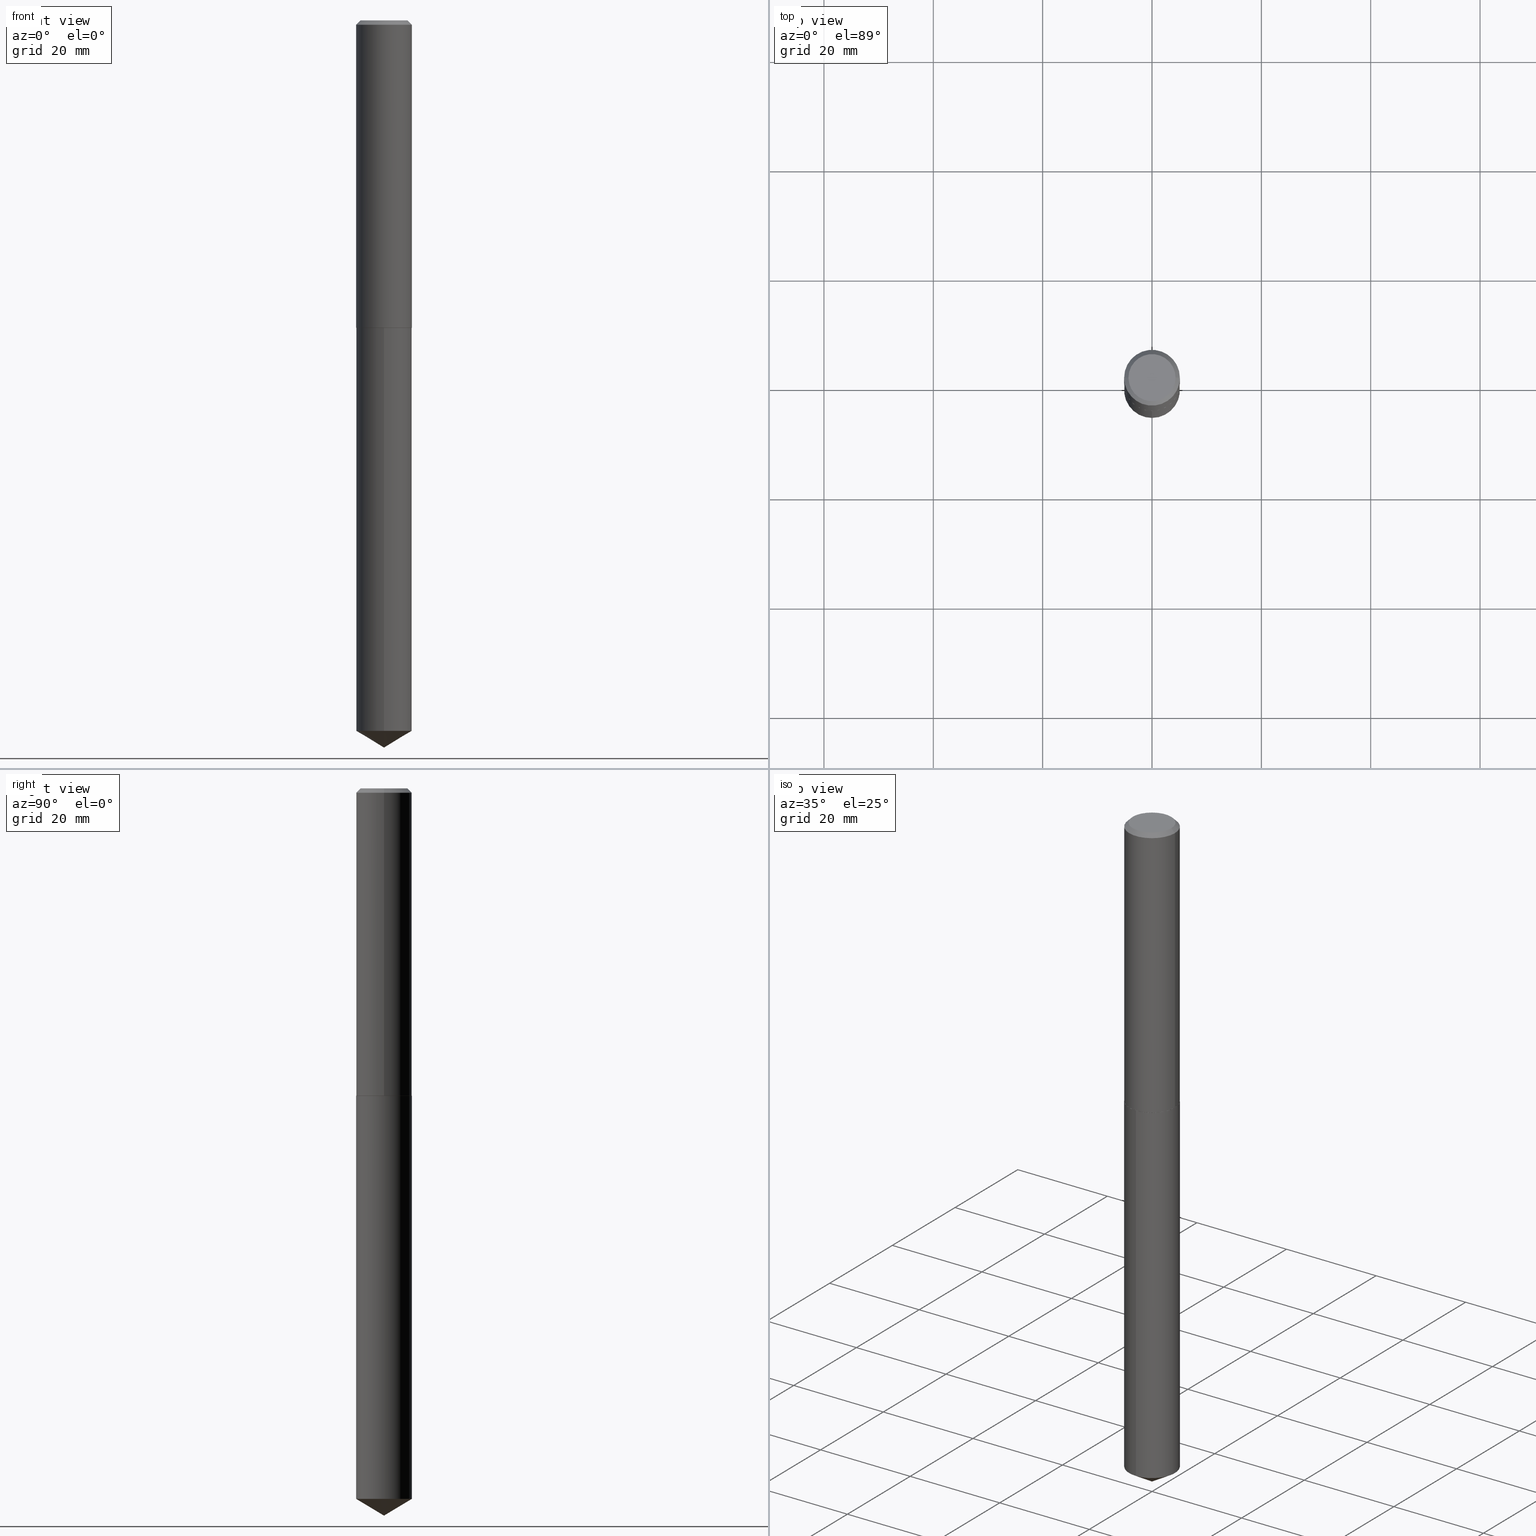
[diagram: canonical four-view strip — front | top / right | iso, engineering-drawing reading convention]
A machine part, canonical four-view strip (front | top / right | iso — engineering-drawing reading convention). The complete STEP part file that produces these views, byte-faithful:
ISO-10303-21;
HEADER;
FILE_DESCRIPTION (( 'STEP AP203' ),
    '1' );
FILE_NAME ('61124.STEP',
    '2024-04-23T04:31:15',
    ( '' ),
    ( '' ),
    'SwSTEP 2.0',
    'SolidWorks 2023',
    '' );
FILE_SCHEMA (( 'CONFIG_CONTROL_DESIGN' ));
ENDSEC;

DATA;
#1 = APPLICATION_CONTEXT ( 'configuration controlled 3d designs of mechanical parts and assemblies' ) ;
#2 = EDGE_CURVE ( 'NONE', #223, #241, #267, .T. ) ;
#3 = AXIS2_PLACEMENT_3D ( 'NONE', #147, #80, #146 ) ;
#4 = AXIS2_PLACEMENT_3D ( 'NONE', #56, #60, #337 ) ;
#5 = CARTESIAN_POINT ( 'NONE',  ( 0.2008000000000002838, -9.125684775334329843E-15, -2.212100000000000843 ) ) ;
#6 = DIRECTION ( 'NONE',  ( -2.445428185463141747E-29, 3.491539510029030103E-15, 1.000000000000000000 ) ) ;
#7 = CONICAL_SURFACE ( 'NONE', #264, 0.2008000000000002838, 0.7853981633969702170 ) ;
#8 = DIRECTION ( 'NONE',  ( 2.445428185463141466E-29, -3.491539510029030103E-15, -1.000000000000000000 ) ) ;
#9 = LOCAL_TIME ( 0, 31, 15.00000000000000000, #103 ) ;
#10 = COORDINATED_UNIVERSAL_TIME_OFFSET ( 5, 0, .BEHIND. ) ;
#11 = CARTESIAN_POINT ( 'NONE',  ( 5.410844280565235074E-29, -7.725251610324346826E-15, -2.212600000000001010 ) ) ;
#12 = ORIENTED_EDGE ( 'NONE', *, *, #339, .F. ) ;
#13 = DATE_TIME_ROLE ( 'classification_date' ) ;
#14 = DIRECTION ( 'NONE',  ( -6.982962677686265922E-15, -1.000000000000000000, 3.468864327941598553E-15 ) ) ;
#15 = ADVANCED_FACE ( 'NONE', ( #248 ), #7, .T. ) ;
#16 = EDGE_LOOP ( 'NONE', ( #12, #303, #57, #387 ) ) ;
#17 = AXIS2_PLACEMENT_3D ( 'NONE', #158, #325, #24 ) ;
#18 = CARTESIAN_POINT ( 'NONE',  ( -0.2008000000000002838, -6.296736056248642724E-15, -2.212100000000000843 ) ) ;
#19 = ORIENTED_EDGE ( 'NONE', *, *, #189, .F. ) ;
#20 = DIRECTION ( 'NONE',  ( 1.000000000000000000, -6.982962677686264344E-15, 0.000000000000000000 ) ) ;
#21 = ADVANCED_BREP_SHAPE_REPRESENTATION ( '61124', ( #138, #256, #316 ), #268 ) ;
#22 = ORIENTED_EDGE ( 'NONE', *, *, #117, .T. ) ;
#23 = EDGE_CURVE ( 'NONE', #296, #188, #237, .T. ) ;
#24 = DIRECTION ( 'NONE',  ( -6.982962677686266711E-15, -1.000000000000000000, 5.441928274231599754E-15 ) ) ;
#25 = DIRECTION ( 'NONE',  ( 1.000000000000000000, -6.982962677686266711E-15, 0.000000000000000000 ) ) ;
#26 = EDGE_LOOP ( 'NONE', ( #240, #206 ) ) ;
#27 = AXIS2_PLACEMENT_3D ( 'NONE', #335, #250, #142 ) ;
#28 = LENGTH_MEASURE_WITH_UNIT ( LENGTH_MEASURE( 0.02539999999999999897 ), #123 );
#29 = CARTESIAN_POINT ( 'NONE',  ( 1.426769813406406449E-15, 0.2007999999999922902, -2.212600000000001899 ) ) ;
#30 = PERSON_AND_ORGANIZATION ( #285, #67 ) ;
#31 = CARTESIAN_POINT ( 'NONE',  ( -1.402178905679348314E-15, -0.2008000000000077223, -2.212600000000000122 ) ) ;
#32 = DIRECTION ( 'NONE',  ( -2.445428185463141747E-29, 3.491539510029030103E-15, 1.000000000000000000 ) ) ;
#33 = CC_DESIGN_PERSON_AND_ORGANIZATION_ASSIGNMENT ( #274, #209, ( #386 ) ) ;
#34 = ORIENTED_EDGE ( 'NONE', *, *, #228, .F. ) ;
#35 = DIRECTION ( 'NONE',  ( -6.982962677686266711E-15, -1.000000000000000000, 4.081446205673699815E-15 ) ) ;
#36 = CALENDAR_DATE ( 2024, 23, 4 ) ;
#37 = CARTESIAN_POINT ( 'NONE',  ( 0.2008000000000001450, -1.402178905679403337E-15, 9.791362965798246718E-30 ) ) ;
#38 = CIRCLE ( 'NONE', #378, 0.2008000000000000063 ) ;
#39 = SECURITY_CLASSIFICATION ( '', '', #139 ) ;
#40 = DATE_AND_TIME ( #99, #9 ) ;
#41 = DIRECTION ( 'NONE',  ( -2.445468806185136597E-29, 3.491481338843145583E-15, 1.000000000000000000 ) ) ;
#42 = EDGE_CURVE ( 'NONE', #150, #188, #212, .T. ) ;
#43 = COORDINATED_UNIVERSAL_TIME_OFFSET ( 5, 0, .BEHIND. ) ;
#44 = DIRECTION ( 'NONE',  ( -2.445468806185136597E-29, 3.491481338843145583E-15, 1.000000000000000000 ) ) ;
#45 = ORIENTED_EDGE ( 'NONE', *, *, #226, .F. ) ;
#46 = VECTOR ( 'NONE', #199, 39.37007874015748854 ) ;
#47 = CARTESIAN_POINT ( 'NONE',  ( -0.2008000000000000063, 1.293070113840553250E-15, -0.03125000000000022898 ) ) ;
#48 = PRODUCT_DEFINITION_SHAPE ( 'NONE', 'NONE',  #314 ) ;
#49 = EDGE_CURVE ( 'NONE', #296, #284, #315, .T. ) ;
#50 = DIRECTION ( 'NONE',  ( 1.000000000000000000, -6.982962677686267499E-15, 0.000000000000000000 ) ) ;
#51 = ORIENTED_EDGE ( 'NONE', *, *, #300, .F. ) ;
#52 = DIRECTION ( 'NONE',  ( 6.090539988449778436E-15, 0.8571673007021137769, 0.5150380749100517130 ) ) ;
#53 = DIRECTION ( 'NONE',  ( -6.982962677686266711E-15, -1.000000000000000000, 4.081446205673699815E-15 ) ) ;
#54 = ORIENTED_EDGE ( 'NONE', *, *, #300, .T. ) ;
#55 = APPROVAL_PERSON_ORGANIZATION ( #187, #216, #160 ) ;
#56 = CARTESIAN_POINT ( 'NONE',  ( -8.347185927295272708E-28, 1.191799149613656818E-13, 34.13387874015747769 ) ) ;
#57 = ORIENTED_EDGE ( 'NONE', *, *, #308, .T. ) ;
#58 = APPROVAL ( #310, 'UNSPECIFIED' ) ;
#59 = CARTESIAN_POINT ( 'NONE',  ( -0.2003000000000008662, -6.299385283422751559E-15, -2.212600000000001010 ) ) ;
#60 = DIRECTION ( 'NONE',  ( -2.445428185463141747E-29, 3.491539510029030103E-15, 1.000000000000000000 ) ) ;
#61 = VERTEX_POINT ( 'NONE', #114 ) ;
#62 = ORIENTED_EDGE ( 'NONE', *, *, #235, .F. ) ;
#63 = AXIS2_PLACEMENT_3D ( 'NONE', #89, #211, #181 ) ;
#64 = DESIGN_CONTEXT ( 'detailed design', #1, 'design' ) ;
#65 = APPLICATION_PROTOCOL_DEFINITION ( 'international standard', 'config_control_design', 1994, #1 ) ;
#66 = CIRCLE ( 'NONE', #159, 0.2003000000000008662 ) ;
#67 = ORGANIZATION ( 'UNSPECIFIED', 'UNSPECIFIED', '' ) ;
#68 = DIRECTION ( 'NONE',  ( 1.000000000000000000, 0.000000000000000000, 0.000000000000000000 ) ) ;
#69 = ADVANCED_FACE ( 'NONE', ( #254 ), #319, .T. ) ;
#70 = CARTESIAN_POINT ( 'NONE',  ( 1.280475106472210421E-28, -1.828239918241400823E-14, -5.236200000000000188 ) ) ;
#71 = PERSON_AND_ORGANIZATION_ROLE ( 'creator' ) ;
#72 = CARTESIAN_POINT ( 'NONE',  ( 5.409621546162143394E-29, -7.723505869654926111E-15, -2.212100000000000843 ) ) ;
#73 = AXIS2_PLACEMENT_3D ( 'NONE', #371, #111, #277 ) ;
#74 = VECTOR ( 'NONE', #344, 39.37007874015748143 ) ;
#75 = EDGE_CURVE ( 'NONE', #135, #132, #309, .T. ) ;
#76 = CARTESIAN_POINT ( 'NONE',  ( 5.409621546162143394E-29, -7.723505869654926111E-15, -2.212100000000000843 ) ) ;
#77 = ORIENTED_EDGE ( 'NONE', *, *, #180, .T. ) ;
#78 = ORIENTED_EDGE ( 'NONE', *, *, #2, .F. ) ;
#79 = CONICAL_SURFACE ( 'NONE', #253, 65.52281426576834633, 1.029744258676653867 ) ;
#80 = DIRECTION ( 'NONE',  ( -2.445468806185136597E-29, 3.491481338843145583E-15, 1.000000000000000000 ) ) ;
#81 = ORIENTED_EDGE ( 'NONE', *, *, #94, .T. ) ;
#82 = LINE ( 'NONE', #196, #229 ) ;
#83 = PLANE ( 'NONE',  #27 ) ;
#84 = LINE ( 'NONE', #126, #46 ) ;
#85 = FACE_OUTER_BOUND ( 'NONE', #16, .T. ) ;
#86 = ADVANCED_FACE ( 'NONE', ( #225 ), #153, .T. ) ;
#87 = LOCAL_TIME ( 0, 31, 15.00000000000000000, #252 ) ;
#88 = SHAPE_DEFINITION_REPRESENTATION ( #48, #21 ) ;
#89 = CARTESIAN_POINT ( 'NONE',  ( 5.409621546162143394E-29, -7.723505869654926111E-15, -2.212100000000000843 ) ) ;
#90 = ORIENTED_EDGE ( 'NONE', *, *, #75, .T. ) ;
#91 = CARTESIAN_POINT ( 'NONE',  ( 0.2008000000000000063, -1.511287697518251451E-15, -0.03125000000000022898 ) ) ;
#92 = AXIS2_PLACEMENT_3D ( 'NONE', #129, #8, #313 ) ;
#93 = ORIENTED_EDGE ( 'NONE', *, *, #145, .F. ) ;
#94 = EDGE_CURVE ( 'NONE', #135, #230, #66, .T. ) ;
#95 = PERSON_AND_ORGANIZATION ( #285, #67 ) ;
#96 = FACE_OUTER_BOUND ( 'NONE', #279, .T. ) ;
#97 = FACE_OUTER_BOUND ( 'NONE', #174, .T. ) ;
#98 = DIRECTION ( 'NONE',  ( -0.7071067811865450192, 2.468850131082230634E-15, -0.7071067811865500152 ) ) ;
#99 = CALENDAR_DATE ( 2024, 23, 4 ) ;
#100 = DIRECTION ( 'NONE',  ( -2.445468806185136877E-29, 3.491481338843145188E-15, 1.000000000000000000 ) ) ;
#101 = ADVANCED_FACE ( 'NONE', ( #369 ), #331, .T. ) ;
#102 = CARTESIAN_POINT ( 'NONE',  ( -0.2008000000000001450, 1.426769813406282204E-15, -9.877221661231856994E-30 ) ) ;
#103 = COORDINATED_UNIVERSAL_TIME_OFFSET ( 5, 0, .BEHIND. ) ;
#104 = VECTOR ( 'NONE', #292, 39.37007874015748143 ) ;
#105 = CIRCLE ( 'NONE', #215, 0.1695500000000000063 ) ;
#106 = DIRECTION ( 'NONE',  ( 1.000000000000000000, -6.982962677686267499E-15, 4.876167740117660532E-29 ) ) ;
#107 = DIRECTION ( 'NONE',  ( 1.000000000000000000, -6.982962677686267499E-15, 0.000000000000000000 ) ) ;
#108 = DIRECTION ( 'NONE',  ( 2.445468806185136597E-29, -3.491481338843145583E-15, -1.000000000000000000 ) ) ;
#109 = ORIENTED_EDGE ( 'NONE', *, *, #235, .T. ) ;
#110 = CC_DESIGN_PERSON_AND_ORGANIZATION_ASSIGNMENT ( #247, #71, ( #314 ) ) ;
#111 = DIRECTION ( 'NONE',  ( 2.445468806185136597E-29, -3.491481338843145583E-15, -1.000000000000000000 ) ) ;
#112 = ORIENTED_EDGE ( 'NONE', *, *, #228, .T. ) ;
#113 = UNCERTAINTY_MEASURE_WITH_UNIT (LENGTH_MEASURE( 1.000000000000000082E-05 ), #201, 'distance_accuracy_value', 'NONE');
#114 = CARTESIAN_POINT ( 'NONE',  ( 1.426769813406406252E-15, 0.2007999999999821872, -5.115547187699267084 ) ) ;
#115 = CALENDAR_DATE ( 2024, 23, 4 ) ;
#116 = CARTESIAN_POINT ( 'NONE',  ( 7.642090019328607041E-31, -1.091087918388490883E-16, -0.03125000000000022898 ) ) ;
#117 = EDGE_CURVE ( 'NONE', #132, #150, #127, .T. ) ;
#118 = CARTESIAN_POINT ( 'NONE',  ( 0.2008000000000002838, -9.125684775334329843E-15, -2.212100000000000843 ) ) ;
#119 = ORIENTED_EDGE ( 'NONE', *, *, #117, .F. ) ;
#120 = DIRECTION ( 'NONE',  ( -2.445468806185136597E-29, 3.491481338843145583E-15, 1.000000000000000000 ) ) ;
#121 = CARTESIAN_POINT ( 'NONE',  ( 1.426769813406335057E-15, 0.2007999999999922902, -2.212600000000001899 ) ) ;
#122 = AXIS2_PLACEMENT_3D ( 'NONE', #330, #299, #234 ) ;
#123 =( LENGTH_UNIT ( ) NAMED_UNIT ( * ) SI_UNIT ( $, .METRE. ) );
#124 = CYLINDRICAL_SURFACE ( 'NONE', #261, 0.2008000000000001450 ) ;
#125 = PERSON_AND_ORGANIZATION ( #285, #67 ) ;
#126 = CARTESIAN_POINT ( 'NONE',  ( -0.2008000000000002838, -6.296736056248642724E-15, -2.212100000000000843 ) ) ;
#127 = CIRCLE ( 'NONE', #336, 0.2008000000000002838 ) ;
#128 = CIRCLE ( 'NONE', #246, 0.2008000000000000063 ) ;
#129 = CARTESIAN_POINT ( 'NONE',  ( 5.410844280565235074E-29, -7.725251610324346826E-15, -2.212600000000001010 ) ) ;
#130 = ORIENTED_EDGE ( 'NONE', *, *, #94, .F. ) ;
#131 = EDGE_CURVE ( 'NONE', #255, #375, #179, .T. ) ;
#132 = VERTEX_POINT ( 'NONE', #118 ) ;
#133 = AXIS2_PLACEMENT_3D ( 'NONE', #191, #108, #195 ) ;
#134 = DIRECTION ( 'NONE',  ( -6.982962677686266711E-15, -1.000000000000000000, 4.081446205673699815E-15 ) ) ;
#135 = VERTEX_POINT ( 'NONE', #345 ) ;
#136 = CC_DESIGN_DATE_AND_TIME_ASSIGNMENT ( #192, #13, ( #39 ) ) ;
#137 = VECTOR ( 'NONE', #100, 39.37007874015748143 ) ;
#138 = MANIFOLD_SOLID_BREP ( 'Body-Move/Copy2[1]', #346 ) ;
#139 = SECURITY_CLASSIFICATION_LEVEL ( 'unclassified' ) ;
#140 = ADVANCED_FACE ( 'NONE', ( #85 ), #266, .T. ) ;
#141 = EDGE_LOOP ( 'NONE', ( #184, #109, #365, #354 ) ) ;
#142 = DIRECTION ( 'NONE',  ( -1.000000000000000000, 6.982962677686265922E-15, -4.876176775795935793E-29 ) ) ;
#143 = CIRCLE ( 'NONE', #221, 0.2008000000000002838 ) ;
#144 = ORIENTED_EDGE ( 'NONE', *, *, #308, .F. ) ;
#145 = EDGE_CURVE ( 'NONE', #241, #61, #390, .T. ) ;
#146 = DIRECTION ( 'NONE',  ( 1.000000000000000000, -6.982962677686266711E-15, 4.876176775795936353E-29 ) ) ;
#147 = CARTESIAN_POINT ( 'NONE',  ( 0.000000000000000000, 0.000000000000000000, 0.000000000000000000 ) ) ;
#148 = CALENDAR_DATE ( 2024, 23, 4 ) ;
#149 = ORIENTED_EDGE ( 'NONE', *, *, #194, .F. ) ;
#150 = VERTEX_POINT ( 'NONE', #18 ) ;
#151 = CARTESIAN_POINT ( 'NONE',  ( 0.1695500000000000063, -1.324947112656768051E-15, 7.225416115057117529E-19 ) ) ;
#152 =( NAMED_UNIT ( * ) PLANE_ANGLE_UNIT ( ) SI_UNIT ( $, .RADIAN. ) );
#153 = CONICAL_SURFACE ( 'NONE', #73, 0.2008000000000000063, 0.7853981633974447263 ) ;
#154 = CIRCLE ( 'NONE', #265, 0.2008000000000000063 ) ;
#155 = PERSON_AND_ORGANIZATION_ROLE ( 'classification_officer' ) ;
#156 = CC_DESIGN_PERSON_AND_ORGANIZATION_ASSIGNMENT ( #30, #155, ( #39 ) ) ;
#157 = ORIENTED_EDGE ( 'NONE', *, *, #205, .F. ) ;
#158 = CARTESIAN_POINT ( 'NONE',  ( 1.250979315427598135E-28, -1.786100641170398941E-14, -5.115547187699266196 ) ) ;
#159 = AXIS2_PLACEMENT_3D ( 'NONE', #348, #283, #340 ) ;
#160 = APPROVAL_ROLE ( '' ) ;
#161 = CIRCLE ( 'NONE', #364, 0.2003000000000008662 ) ;
#162 = VERTEX_POINT ( 'NONE', #91 ) ;
#163 = DATE_TIME_ROLE ( 'creation_date' ) ;
#164 = EDGE_LOOP ( 'NONE', ( #130, #34 ) ) ;
#165 = PERSON_AND_ORGANIZATION_ROLE ( 'creator' ) ;
#166 = AXIS2_PLACEMENT_3D ( 'NONE', #170, #6, #53 ) ;
#167 = ADVANCED_FACE ( 'NONE', ( #97 ), #124, .T. ) ;
#168 = PERSON_AND_ORGANIZATION ( #285, #67 ) ;
#169 = EDGE_LOOP ( 'NONE', ( #22, #233, #157, #19 ) ) ;
#170 = CARTESIAN_POINT ( 'NONE',  ( 5.410844280565235074E-29, -7.725251610324346826E-15, -2.212600000000001010 ) ) ;
#171 = ADVANCED_FACE ( 'NONE', ( #96 ), #347, .T. ) ;
#172 = DIRECTION ( 'NONE',  ( -2.438088387897960049E-29, 3.491481338843145188E-15, 1.000000000000000000 ) ) ;
#173 = LOCAL_TIME ( 0, 31, 15.00000000000000000, #43 ) ;
#174 = EDGE_LOOP ( 'NONE', ( #359, #227, #281, #341 ) ) ;
#175 = LINE ( 'NONE', #379, #104 ) ;
#176 = PLANE ( 'NONE',  #286 ) ;
#177 = DIRECTION ( 'NONE',  ( 0.7071067811862092878, -2.468850131078715470E-15, 0.7071067811868855246 ) ) ;
#178 = EDGE_CURVE ( 'NONE', #284, #296, #105, .T. ) ;
#179 = CIRCLE ( 'NONE', #166, 0.2008000000000000063 ) ;
#180 = EDGE_CURVE ( 'NONE', #375, #255, #154, .T. ) ;
#181 = DIRECTION ( 'NONE',  ( 1.000000000000000000, -6.982962677686267499E-15, 0.000000000000000000 ) ) ;
#182 = CARTESIAN_POINT ( 'NONE',  ( 0.000000000000000000, 0.000000000000000000, 0.000000000000000000 ) ) ;
#183 = APPROVAL_STATUS ( 'not_yet_approved' ) ;
#184 = ORIENTED_EDGE ( 'NONE', *, *, #178, .F. ) ;
#185 = DATE_AND_TIME ( #36, #173 ) ;
#186 = CARTESIAN_POINT ( 'NONE',  ( -1.766952972086505154E-47, 2.522740553079218199E-33, 7.225416114969394308E-19 ) ) ;
#187 = PERSON_AND_ORGANIZATION ( #285, #67 ) ;
#188 = VERTEX_POINT ( 'NONE', #294 ) ;
#189 = EDGE_CURVE ( 'NONE', #132, #162, #287, .T. ) ;
#190 = CALENDAR_DATE ( 2024, 23, 4 ) ;
#191 = CARTESIAN_POINT ( 'NONE',  ( 7.642090019328607041E-31, -1.091087918388490883E-16, -0.03125000000000022898 ) ) ;
#192 = DATE_AND_TIME ( #148, #262 ) ;
#193 = FACE_OUTER_BOUND ( 'NONE', #164, .T. ) ;
#194 = EDGE_CURVE ( 'NONE', #150, #132, #143, .T. ) ;
#195 = DIRECTION ( 'NONE',  ( -1.000000000000000000, 6.982962677686266711E-15, 0.000000000000000000 ) ) ;
#196 = CARTESIAN_POINT ( 'NONE',  ( 1.280493239577865637E-28, -1.828214176328223071E-14, -5.236200000000000188 ) ) ;
#197 = APPROVAL_DATE_TIME ( #342, #58 ) ;
#198 = CARTESIAN_POINT ( 'NONE',  ( 5.410844280565235074E-29, -7.725251610324346826E-15, -2.212600000000001010 ) ) ;
#199 = DIRECTION ( 'NONE',  ( -0.7071067811862092878, 7.493145998869131426E-15, 0.7071067811868855246 ) ) ;
#200 = FACE_OUTER_BOUND ( 'NONE', #382, .T. ) ;
#201 =( CONVERSION_BASED_UNIT ( 'INCH', #28 ) LENGTH_UNIT ( ) NAMED_UNIT ( #304 ) );
#202 = DIRECTION ( 'NONE',  ( -2.445468806185136597E-29, 3.491481338843145583E-15, 1.000000000000000000 ) ) ;
#203 = VECTOR ( 'NONE', #219, 39.37007874015748143 ) ;
#204 = DIRECTION ( 'NONE',  ( -2.445428185463141747E-29, 3.491539510029030103E-15, 1.000000000000000000 ) ) ;
#205 = EDGE_CURVE ( 'NONE', #162, #188, #38, .T. ) ;
#206 = ORIENTED_EDGE ( 'NONE', *, *, #178, .T. ) ;
#207 = VECTOR ( 'NONE', #332, 39.37007874015748143 ) ;
#208 = AXIS2_PLACEMENT_3D ( 'NONE', #269, #204, #35 ) ;
#209 = PERSON_AND_ORGANIZATION_ROLE ( 'design_supplier' ) ;
#210 = DIRECTION ( 'NONE',  ( 0.000000000000000000, 0.000000000000000000, 1.000000000000000000 ) ) ;
#211 = DIRECTION ( 'NONE',  ( -2.445468806185136597E-29, 3.491481338843145583E-15, 1.000000000000000000 ) ) ;
#212 = LINE ( 'NONE', #102, #207 ) ;
#213 = DIRECTION ( 'NONE',  ( -6.982962677686266711E-15, -1.000000000000000000, 4.081446205673699815E-15 ) ) ;
#214 = EDGE_LOOP ( 'NONE', ( #78, #54, #93 ) ) ;
#215 = AXIS2_PLACEMENT_3D ( 'NONE', #358, #202, #361 ) ;
#216 = APPROVAL ( #367, 'UNSPECIFIED' ) ;
#217 = ORIENTED_EDGE ( 'NONE', *, *, #23, .T. ) ;
#218 = COORDINATED_UNIVERSAL_TIME_OFFSET ( 5, 0, .BEHIND. ) ;
#219 = DIRECTION ( 'NONE',  ( -2.445428185463141747E-29, 3.491539510029030103E-15, 1.000000000000000000 ) ) ;
#220 = FACE_OUTER_BOUND ( 'NONE', #214, .T. ) ;
#221 = AXIS2_PLACEMENT_3D ( 'NONE', #72, #302, #289 ) ;
#222 = ORIENTED_EDGE ( 'NONE', *, *, #131, .T. ) ;
#223 = VERTEX_POINT ( 'NONE', #260 ) ;
#224 = AXIS2_PLACEMENT_3D ( 'NONE', #186, #41, #106 ) ;
#225 = FACE_OUTER_BOUND ( 'NONE', #288, .T. ) ;
#226 = EDGE_CURVE ( 'NONE', #230, #150, #84, .T. ) ;
#227 = ORIENTED_EDGE ( 'NONE', *, *, #194, .T. ) ;
#228 = EDGE_CURVE ( 'NONE', #230, #135, #161, .T. ) ;
#229 = VECTOR ( 'NONE', #52, 39.37007874015748143 ) ;
#230 = VERTEX_POINT ( 'NONE', #59 ) ;
#231 = CC_DESIGN_APPROVAL ( #58, ( #39 ) ) ;
#232 = CARTESIAN_POINT ( 'NONE',  ( -1.402178905679277119E-15, -0.2008000000000178809, -5.115547187699265308 ) ) ;
#233 = ORIENTED_EDGE ( 'NONE', *, *, #42, .T. ) ;
#234 = DIRECTION ( 'NONE',  ( -6.982962677686266711E-15, -1.000000000000000000, 5.441928274231599754E-15 ) ) ;
#235 = EDGE_CURVE ( 'NONE', #284, #162, #175, .T. ) ;
#236 = FACE_OUTER_BOUND ( 'NONE', #324, .T. ) ;
#237 = LINE ( 'NONE', #47, #389 ) ;
#238 = EDGE_LOOP ( 'NONE', ( #45, #112, #90, #149 ) ) ;
#239 = DIRECTION ( 'NONE',  ( -2.445428185463141747E-29, 3.491539510029030103E-15, 1.000000000000000000 ) ) ;
#240 = ORIENTED_EDGE ( 'NONE', *, *, #49, .T. ) ;
#241 = VERTEX_POINT ( 'NONE', #232 ) ;
#242 = PERSON_AND_ORGANIZATION ( #285, #67 ) ;
#243 = APPROVAL ( #183, 'UNSPECIFIED' ) ;
#244 = VECTOR ( 'NONE', #177, 39.37007874015748854 ) ;
#245 = ORIENTED_EDGE ( 'NONE', *, *, #2, .T. ) ;
#246 = AXIS2_PLACEMENT_3D ( 'NONE', #374, #291, #25 ) ;
#247 = PERSON_AND_ORGANIZATION ( #285, #67 ) ;
#248 = FACE_OUTER_BOUND ( 'NONE', #238, .T. ) ;
#249 = ORIENTED_EDGE ( 'NONE', *, *, #339, .T. ) ;
#250 = DIRECTION ( 'NONE',  ( 2.438088387897960049E-29, -3.491481338843145188E-15, -1.000000000000000000 ) ) ;
#251 = PRODUCT ( '61124', '61124', '', ( #380 ) ) ;
#252 = COORDINATED_UNIVERSAL_TIME_OFFSET ( 5, 0, .BEHIND. ) ;
#253 = AXIS2_PLACEMENT_3D ( 'NONE', #317, #370, #14 ) ;
#254 = FACE_OUTER_BOUND ( 'NONE', #169, .T. ) ;
#255 = VERTEX_POINT ( 'NONE', #29 ) ;
#256 = MANIFOLD_SOLID_BREP ( 'Body-Move/Copy2[2]', #322 ) ;
#257 = CARTESIAN_POINT ( 'NONE',  ( -1.402178905679348314E-15, -0.2008000000000077223, -2.212600000000000122 ) ) ;
#258 = CARTESIAN_POINT ( 'NONE',  ( 5.409621546162143394E-29, -7.723505869654926111E-15, -2.212100000000000843 ) ) ;
#259 = ADVANCED_FACE ( 'NONE', ( #236 ), #297, .T. ) ;
#260 = CARTESIAN_POINT ( 'NONE',  ( 1.280475106472210421E-28, -1.828239918241400823E-14, -5.236200000000000188 ) ) ;
#261 = AXIS2_PLACEMENT_3D ( 'NONE', #182, #356, #349 ) ;
#262 = LOCAL_TIME ( 0, 31, 15.00000000000000000, #10 ) ;
#263 = FACE_OUTER_BOUND ( 'NONE', #278, .T. ) ;
#264 = AXIS2_PLACEMENT_3D ( 'NONE', #76, #44, #107 ) ;
#265 = AXIS2_PLACEMENT_3D ( 'NONE', #295, #32, #134 ) ;
#266 = CYLINDRICAL_SURFACE ( 'NONE', #307, 0.2008000000000000063 ) ;
#267 = LINE ( 'NONE', #70, #377 ) ;
#268 =( GEOMETRIC_REPRESENTATION_CONTEXT ( 3 ) GLOBAL_UNCERTAINTY_ASSIGNED_CONTEXT ( ( #113 ) ) GLOBAL_UNIT_ASSIGNED_CONTEXT ( ( #201, #152, #327 ) ) REPRESENTATION_CONTEXT ( 'NONE', 'WORKASPACE' ) );
#269 = CARTESIAN_POINT ( 'NONE',  ( 5.410844280565235074E-29, -7.725251610324346826E-15, -2.212600000000001010 ) ) ;
#270 = DATE_AND_TIME ( #190, #323 ) ;
#271 = ORIENTED_EDGE ( 'NONE', *, *, #49, .F. ) ;
#272 = EDGE_CURVE ( 'NONE', #61, #241, #357, .T. ) ;
#273 = APPROVAL_PERSON_ORGANIZATION ( #242, #243, #363 ) ;
#274 = PERSON_AND_ORGANIZATION ( #285, #67 ) ;
#275 = CC_DESIGN_PERSON_AND_ORGANIZATION_ASSIGNMENT ( #95, #165, ( #386 ) ) ;
#276 = APPROVAL_ROLE ( '' ) ;
#277 = DIRECTION ( 'NONE',  ( -1.000000000000000000, 6.982962677686266711E-15, 0.000000000000000000 ) ) ;
#278 = EDGE_LOOP ( 'NONE', ( #77, #222 ) ) ;
#279 = EDGE_LOOP ( 'NONE', ( #81, #305, #119, #366 ) ) ;
#280 = CC_DESIGN_DATE_AND_TIME_ASSIGNMENT ( #185, #163, ( #314 ) ) ;
#281 = ORIENTED_EDGE ( 'NONE', *, *, #189, .T. ) ;
#282 = DIRECTION ( 'NONE',  ( 1.000000000000000000, -6.982962677686265922E-15, 4.876176775795935793E-29 ) ) ;
#283 = DIRECTION ( 'NONE',  ( -2.445468806185136597E-29, 3.491481338843145583E-15, 1.000000000000000000 ) ) ;
#284 = VERTEX_POINT ( 'NONE', #151 ) ;
#285 = PERSON ( 'UNSPECIFIED', 'UNSPECIFIED', 'UNSPECIFIED', ('UNSPECIFIED'), ('UNSPECIFIED'), ('UNSPECIFIED') ) ;
#286 = AXIS2_PLACEMENT_3D ( 'NONE', #198, #172, #282 ) ;
#287 = LINE ( 'NONE', #37, #137 ) ;
#288 = EDGE_LOOP ( 'NONE', ( #62, #271, #217, #372 ) ) ;
#289 = DIRECTION ( 'NONE',  ( 1.000000000000000000, -6.982962677686267499E-15, 0.000000000000000000 ) ) ;
#290 = ADVANCED_FACE ( 'NONE', ( #263 ), #384, .F. ) ;
#291 = DIRECTION ( 'NONE',  ( -2.445468806185136597E-29, 3.491481338843145583E-15, 1.000000000000000000 ) ) ;
#292 = DIRECTION ( 'NONE',  ( 0.7071067811865450192, -7.319954787623246579E-15, -0.7071067811865500152 ) ) ;
#293 = ORIENTED_EDGE ( 'NONE', *, *, #145, .T. ) ;
#294 = CARTESIAN_POINT ( 'NONE',  ( -0.2008000000000000063, -2.489537517340604613E-15, -0.03125000000000022898 ) ) ;
#295 = CARTESIAN_POINT ( 'NONE',  ( 5.410844280565235074E-29, -7.725251610324346826E-15, -2.212600000000001010 ) ) ;
#296 = VERTEX_POINT ( 'NONE', #338 ) ;
#297 = CYLINDRICAL_SURFACE ( 'NONE', #208, 0.2008000000000000063 ) ;
#298 = APPROVAL_DATE_TIME ( #40, #243 ) ;
#299 = DIRECTION ( 'NONE',  ( -2.445428185463141747E-29, 3.491539510029030103E-15, 1.000000000000000000 ) ) ;
#300 = EDGE_CURVE ( 'NONE', #223, #61, #82, .T. ) ;
#301 = CC_DESIGN_SECURITY_CLASSIFICATION ( #39, ( #386 ) ) ;
#302 = DIRECTION ( 'NONE',  ( -2.445468806185136597E-29, 3.491481338843145583E-15, 1.000000000000000000 ) ) ;
#303 = ORIENTED_EDGE ( 'NONE', *, *, #272, .T. ) ;
#304 = DIMENSIONAL_EXPONENTS ( 1.000000000000000000, 0.000000000000000000, 0.000000000000000000, 0.000000000000000000, 0.000000000000000000, 0.000000000000000000, 0.000000000000000000 ) ;
#305 = ORIENTED_EDGE ( 'NONE', *, *, #226, .T. ) ;
#306 = APPROVAL_DATE_TIME ( #270, #216 ) ;
#307 = AXIS2_PLACEMENT_3D ( 'NONE', #328, #239, #213 ) ;
#308 = EDGE_CURVE ( 'NONE', #241, #375, #388, .T. ) ;
#309 = LINE ( 'NONE', #5, #244 ) ;
#310 = APPROVAL_STATUS ( 'not_yet_approved' ) ;
#311 = DIRECTION ( 'NONE',  ( -2.445468806185136597E-29, 3.491481338843145583E-15, 1.000000000000000000 ) ) ;
#312 = ORIENTED_EDGE ( 'NONE', *, *, #272, .F. ) ;
#313 = DIRECTION ( 'NONE',  ( 6.982962677686265922E-15, 1.000000000000000000, -3.491539510029030103E-15 ) ) ;
#314 = PRODUCT_DEFINITION ( 'UNKNOWN', '', #386, #64 ) ;
#315 = CIRCLE ( 'NONE', #224, 0.1695500000000000063 ) ;
#316 = AXIS2_PLACEMENT_3D ( 'NONE', #355, #210, #68 ) ;
#317 = CARTESIAN_POINT ( 'NONE',  ( -8.347185927295272708E-28, 1.191799149613656818E-13, 34.13387874015747769 ) ) ;
#318 = APPROVAL_PERSON_ORGANIZATION ( #168, #58, #276 ) ;
#319 = CYLINDRICAL_SURFACE ( 'NONE', #3, 0.2008000000000001450 ) ;
#320 = ORIENTED_EDGE ( 'NONE', *, *, #180, .F. ) ;
#321 = PERSON_AND_ORGANIZATION_ROLE ( 'design_owner' ) ;
#322 = CLOSED_SHELL ( 'NONE', ( #101, #69, #171, #360, #15, #167, #86, #326 ) ) ;
#323 = LOCAL_TIME ( 0, 31, 15.00000000000000000, #218 ) ;
#324 = EDGE_LOOP ( 'NONE', ( #293, #249, #320, #144 ) ) ;
#325 = DIRECTION ( 'NONE',  ( -2.445428185463141747E-29, 3.491539510029030103E-15, 1.000000000000000000 ) ) ;
#326 = ADVANCED_FACE ( 'NONE', ( #368 ), #83, .F. ) ;
#327 =( NAMED_UNIT ( * ) SI_UNIT ( $, .STERADIAN. ) SOLID_ANGLE_UNIT ( ) );
#328 = CARTESIAN_POINT ( 'NONE',  ( 5.410844280565235074E-29, -7.725251610324346826E-15, -2.212600000000001010 ) ) ;
#329 = CC_DESIGN_APPROVAL ( #216, ( #386 ) ) ;
#330 = CARTESIAN_POINT ( 'NONE',  ( 1.250979315427598135E-28, -1.786100641170398941E-14, -5.115547187699266196 ) ) ;
#331 = CONICAL_SURFACE ( 'NONE', #133, 0.2008000000000000063, 0.7853981633974447263 ) ;
#332 = DIRECTION ( 'NONE',  ( -2.445468806185136877E-29, 3.491481338843145188E-15, 1.000000000000000000 ) ) ;
#333 = CC_DESIGN_APPROVAL ( #243, ( #314 ) ) ;
#334 = ADVANCED_FACE ( 'NONE', ( #220 ), #79, .T. ) ;
#335 = CARTESIAN_POINT ( 'NONE',  ( -8.834764860432525770E-48, 1.261370276539609100E-33, 3.612708057484697154E-19 ) ) ;
#336 = AXIS2_PLACEMENT_3D ( 'NONE', #258, #311, #50 ) ;
#337 = DIRECTION ( 'NONE',  ( -6.982962677686265922E-15, -1.000000000000000000, 3.468864327941598553E-15 ) ) ;
#338 = CARTESIAN_POINT ( 'NONE',  ( -0.1695500000000000063, 1.238515717921129883E-15, 7.225416114884689021E-19 ) ) ;
#339 = EDGE_CURVE ( 'NONE', #61, #255, #376, .T. ) ;
#340 = DIRECTION ( 'NONE',  ( 1.000000000000000000, -6.982962677686264344E-15, 0.000000000000000000 ) ) ;
#341 = ORIENTED_EDGE ( 'NONE', *, *, #381, .F. ) ;
#342 = DATE_AND_TIME ( #115, #87 ) ;
#343 = DIRECTION ( 'NONE',  ( -2.445468806185136597E-29, 3.491481338843145583E-15, 1.000000000000000000 ) ) ;
#344 = DIRECTION ( 'NONE',  ( -2.445428185463141747E-29, 3.491539510029030103E-15, 1.000000000000000000 ) ) ;
#345 = CARTESIAN_POINT ( 'NONE',  ( 0.2003000000000008662, -9.123939034664912283E-15, -2.212600000000001010 ) ) ;
#346 = CLOSED_SHELL ( 'NONE', ( #259, #334, #353, #140, #290 ) ) ;
#347 = CONICAL_SURFACE ( 'NONE', #63, 0.2008000000000002838, 0.7853981633969702170 ) ;
#348 = CARTESIAN_POINT ( 'NONE',  ( 5.410844280565235074E-29, -7.725251610324346826E-15, -2.212600000000001010 ) ) ;
#349 = DIRECTION ( 'NONE',  ( 1.000000000000000000, -6.982962677686266711E-15, 4.876176775795936353E-29 ) ) ;
#350 = APPLICATION_PROTOCOL_DEFINITION ( 'international standard', 'config_control_design', 1994, #352 ) ;
#351 = CONICAL_SURFACE ( 'NONE', #4, 65.52281426576834633, 1.029744258676653867 ) ;
#352 = APPLICATION_CONTEXT ( 'configuration controlled 3d designs of mechanical parts and assemblies' ) ;
#353 = ADVANCED_FACE ( 'NONE', ( #200 ), #351, .T. ) ;
#354 = ORIENTED_EDGE ( 'NONE', *, *, #23, .F. ) ;
#355 = CARTESIAN_POINT ( 'NONE',  ( 0.000000000000000000, 0.000000000000000000, 0.000000000000000000 ) ) ;
#356 = DIRECTION ( 'NONE',  ( -2.445468806185136597E-29, 3.491481338843145583E-15, 1.000000000000000000 ) ) ;
#357 = CIRCLE ( 'NONE', #17, 0.2008000000000000063 ) ;
#358 = CARTESIAN_POINT ( 'NONE',  ( -1.766952972086505154E-47, 2.522740553079218199E-33, 7.225416114969394308E-19 ) ) ;
#359 = ORIENTED_EDGE ( 'NONE', *, *, #42, .F. ) ;
#360 = ADVANCED_FACE ( 'NONE', ( #193 ), #176, .F. ) ;
#361 = DIRECTION ( 'NONE',  ( 1.000000000000000000, -6.982962677686267499E-15, 4.876167740117660532E-29 ) ) ;
#362 = DIRECTION ( 'NONE',  ( -5.985567269335941279E-15, -0.8571673007021102242, 0.5150380749100577082 ) ) ;
#363 = APPROVAL_ROLE ( '' ) ;
#364 = AXIS2_PLACEMENT_3D ( 'NONE', #11, #120, #20 ) ;
#365 = ORIENTED_EDGE ( 'NONE', *, *, #205, .T. ) ;
#366 = ORIENTED_EDGE ( 'NONE', *, *, #75, .F. ) ;
#367 = APPROVAL_STATUS ( 'not_yet_approved' ) ;
#368 = FACE_OUTER_BOUND ( 'NONE', #26, .T. ) ;
#369 = FACE_OUTER_BOUND ( 'NONE', #141, .T. ) ;
#370 = DIRECTION ( 'NONE',  ( -2.445428185463141747E-29, 3.491539510029030103E-15, 1.000000000000000000 ) ) ;
#371 = CARTESIAN_POINT ( 'NONE',  ( 7.642090019328607041E-31, -1.091087918388490883E-16, -0.03125000000000022898 ) ) ;
#372 = ORIENTED_EDGE ( 'NONE', *, *, #381, .T. ) ;
#373 = PRODUCT_RELATED_PRODUCT_CATEGORY ( 'detail', '', ( #251 ) ) ;
#374 = CARTESIAN_POINT ( 'NONE',  ( 7.642090019328607041E-31, -1.091087918388490883E-16, -0.03125000000000022898 ) ) ;
#375 = VERTEX_POINT ( 'NONE', #257 ) ;
#376 = LINE ( 'NONE', #121, #74 ) ;
#377 = VECTOR ( 'NONE', #362, 39.37007874015748143 ) ;
#378 = AXIS2_PLACEMENT_3D ( 'NONE', #116, #343, #383 ) ;
#379 = CARTESIAN_POINT ( 'NONE',  ( 0.2008000000000000063, -1.486696789791372782E-15, -0.03125000000000022898 ) ) ;
#380 = MECHANICAL_CONTEXT ( 'NONE', #352, 'mechanical' ) ;
#381 = EDGE_CURVE ( 'NONE', #188, #162, #128, .T. ) ;
#382 = EDGE_LOOP ( 'NONE', ( #51, #245, #312 ) ) ;
#383 = DIRECTION ( 'NONE',  ( 1.000000000000000000, -6.982962677686266711E-15, 0.000000000000000000 ) ) ;
#384 = PLANE ( 'NONE',  #92 ) ;
#385 = CC_DESIGN_PERSON_AND_ORGANIZATION_ASSIGNMENT ( #125, #321, ( #251 ) ) ;
#386 = PRODUCT_DEFINITION_FORMATION_WITH_SPECIFIED_SOURCE ( 'ANY', '', #251, .NOT_KNOWN. ) ;
#387 = ORIENTED_EDGE ( 'NONE', *, *, #131, .F. ) ;
#388 = LINE ( 'NONE', #31, #203 ) ;
#389 = VECTOR ( 'NONE', #98, 39.37007874015748143 ) ;
#390 = CIRCLE ( 'NONE', #122, 0.2008000000000000063 ) ;
ENDSEC;
END-ISO-10303-21;
